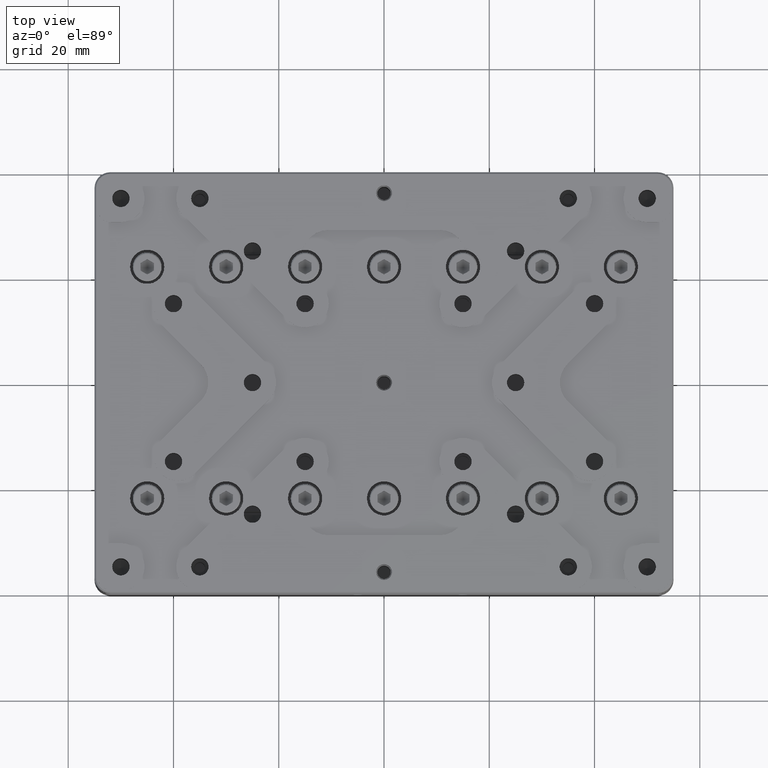
[diagram: clean part render]
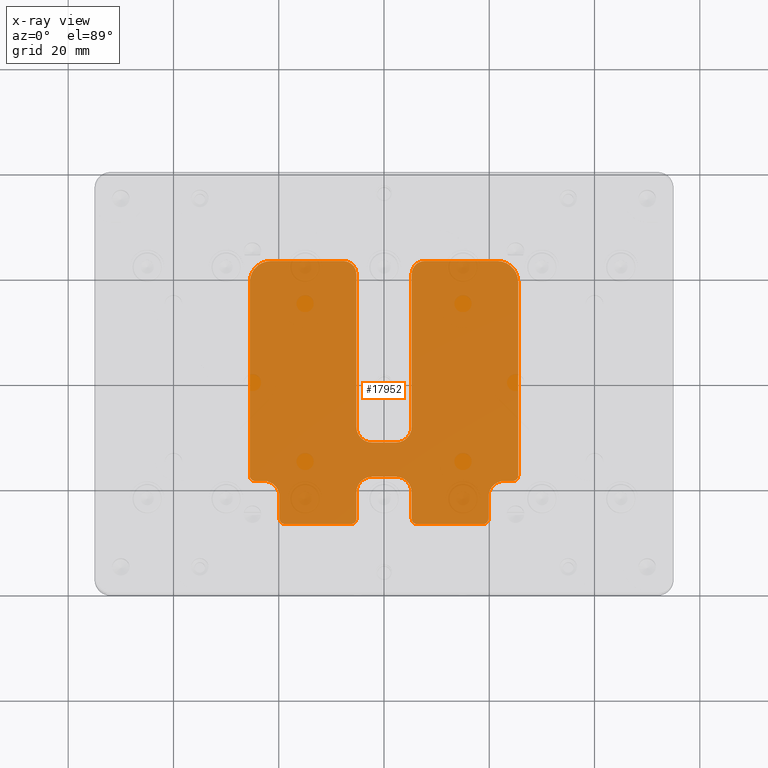
[diagram: x-ray — body ghosted, one internal face saturated and labeled with its STEP entity id]
A machine part, top view, then the same camera in x-ray: the body is ghosted and one INTERNAL B-rep face — a face not visible from any outside direction — is saturated and labeled: STEP entity #17952.
In plain terms, the highlighted planar face has unit normal (0, 0, -1).
Its self-contained STEP definition (entity closure, byte-faithful):
#125 = DIRECTION ( 'NONE',  ( -1.000000000000000000, 0.000000000000000000, 0.000000000000000000 ) ) ;
#130 = VECTOR ( 'NONE', #19628, 1000.000000000000000 ) ;
#164 = LINE ( 'NONE', #27561, #11228 ) ;
#165 = VERTEX_POINT ( 'NONE', #17765 ) ;
#207 = CARTESIAN_POINT ( 'NONE',  ( 18.85000000010499832, -26.49999999998555111, -8.799999999961789499 ) ) ;
#547 = DIRECTION ( 'NONE',  ( 0.000000000000000000, 0.000000000000000000, -1.000000000000000000 ) ) ;
#589 = AXIS2_PLACEMENT_3D ( 'NONE', #32885, #27697, #11940 ) ;
#609 = AXIS2_PLACEMENT_3D ( 'NONE', #22976, #12427, #3654 ) ;
#735 = DIRECTION ( 'NONE',  ( 1.000000000000000000, 0.000000000000000000, 0.000000000000000000 ) ) ;
#874 = EDGE_CURVE ( 'NONE', #14694, #27422, #6669, .T. ) ;
#953 = ORIENTED_EDGE ( 'NONE', *, *, #22316, .F. ) ;
#1195 = AXIS2_PLACEMENT_3D ( 'NONE', #10550, #8046, #32384 ) ;
#1376 = DIRECTION ( 'NONE',  ( 0.000000000000000000, 1.000000000000000000, 0.000000000000000000 ) ) ;
#1459 = CARTESIAN_POINT ( 'NONE',  ( -2.250000000000000000, -8.000000000000000000, -8.800000000007910828 ) ) ;
#1480 = VERTEX_POINT ( 'NONE', #11110 ) ;
#1581 = CARTESIAN_POINT ( 'NONE',  ( -21.49999998740000251, 23.49999999868059675, -8.799999999354209734 ) ) ;
#1583 = VERTEX_POINT ( 'NONE', #33825 ) ;
#1656 = ORIENTED_EDGE ( 'NONE', *, *, #28094, .F. ) ;
#1877 = CARTESIAN_POINT ( 'NONE',  ( -22.84999999999999787, -21.30000000000000071, -8.800000005010129911 ) ) ;
#1891 = VERTEX_POINT ( 'NONE', #14815 ) ;
#2003 = CARTESIAN_POINT ( 'NONE',  ( -18.84999999999999787, -25.50000000000000000, -8.799999999951069185 ) ) ;
#2096 = DIRECTION ( 'NONE',  ( 0.000000000000000000, -1.000000000000000000, 0.000000000000000000 ) ) ;
#2180 = ORIENTED_EDGE ( 'NONE', *, *, #23072, .F. ) ;
#2217 = DIRECTION ( 'NONE',  ( 1.000000000000000000, 0.000000000000000000, 0.000000000000000000 ) ) ;
#2285 = ORIENTED_EDGE ( 'NONE', *, *, #30679, .F. ) ;
#2330 = VERTEX_POINT ( 'NONE', #6538 ) ;
#2498 = CARTESIAN_POINT ( 'NONE',  ( -21.50000000000000000, 19.50000000000000000, -8.800000000007910828 ) ) ;
#2547 = EDGE_CURVE ( 'NONE', #22695, #1583, #23355, .T. ) ;
#2607 = DIRECTION ( 'NONE',  ( 0.000000000000000000, 0.000000000000000000, -1.000000000000000000 ) ) ;
#2640 = VERTEX_POINT ( 'NONE', #19034 ) ;
#2720 = DIRECTION ( 'NONE',  ( 0.000000000000000000, 1.000000000000000000, 0.000000000000000000 ) ) ;
#2803 = LINE ( 'NONE', #24648, #34516 ) ;
#2813 = CARTESIAN_POINT ( 'NONE',  ( -6.250000000000000000, -25.50000000000000000, -8.799999999951069185 ) ) ;
#2941 = DIRECTION ( 'NONE',  ( 1.000000000000000000, 0.000000000000000000, 0.000000000000000000 ) ) ;
#3181 = CARTESIAN_POINT ( 'NONE',  ( 21.50000000000000000, 23.49999999998429701, -8.800000000016961366 ) ) ;
#3326 = VERTEX_POINT ( 'NONE', #15523 ) ;
#3654 = DIRECTION ( 'NONE',  ( 1.000000000000000000, 0.000000000000000000, 0.000000000000000000 ) ) ;
#3911 = AXIS2_PLACEMENT_3D ( 'NONE', #32540, #14095, #25025 ) ;
#4018 = VERTEX_POINT ( 'NONE', #26011 ) ;
#4027 = VECTOR ( 'NONE', #15087, 1000.000000000000000 ) ;
#4051 = EDGE_CURVE ( 'NONE', #1891, #32509, #19925, .T. ) ;
#4198 = AXIS2_PLACEMENT_3D ( 'NONE', #35378, #13719, #5662 ) ;
#4209 = EDGE_CURVE ( 'NONE', #17179, #28398, #31906, .T. ) ;
#4291 = LINE ( 'NONE', #34534, #6667 ) ;
#4347 = DIRECTION ( 'NONE',  ( -1.000000000000000000, 0.000000000000000000, 0.000000000000000000 ) ) ;
#4710 = CARTESIAN_POINT ( 'NONE',  ( 19.85000000247055141, -25.50000000000000000, -8.800000002470531157 ) ) ;
#4866 = DIRECTION ( 'NONE',  ( 0.000000000000000000, 0.000000000000000000, -1.000000000000000000 ) ) ;
#5227 = CARTESIAN_POINT ( 'NONE',  ( 0.000000000000000000, -18.29999999997000160, -8.800000000000000711 ) ) ;
#5512 = CARTESIAN_POINT ( 'NONE',  ( -18.84999999999999787, -26.49999999996180122, -8.799999999961789499 ) ) ;
#5515 = ORIENTED_EDGE ( 'NONE', *, *, #32494, .F. ) ;
#5531 = AXIS2_PLACEMENT_3D ( 'NONE', #13785, #8762, #11099 ) ;
#5622 = VECTOR ( 'NONE', #2217, 1000.000000000000000 ) ;
#5662 = DIRECTION ( 'NONE',  ( -1.000000000000000000, 0.000000000000000000, 0.000000000000000000 ) ) ;
#5680 = ORIENTED_EDGE ( 'NONE', *, *, #874, .F. ) ;
#5814 = CARTESIAN_POINT ( 'NONE',  ( 5.250000000025000446, -25.50000000010499690, -8.799999999963029396 ) ) ;
#5843 = EDGE_CURVE ( 'NONE', #7016, #6335, #9803, .T. ) ;
#6024 = ORIENTED_EDGE ( 'NONE', *, *, #5843, .F. ) ;
#6071 = EDGE_CURVE ( 'NONE', #35272, #17179, #17923, .T. ) ;
#6164 = EDGE_CURVE ( 'NONE', #14967, #32928, #28774, .T. ) ;
#6183 = CIRCLE ( 'NONE', #19812, 2.999999995037069933 ) ;
#6243 = CARTESIAN_POINT ( 'NONE',  ( -25.49999999997249844, -17.30000000010499761, -8.799999999961789499 ) ) ;
#6335 = VERTEX_POINT ( 'NONE', #12269 ) ;
#6393 = LINE ( 'NONE', #17316, #28699 ) ;
#6417 = CARTESIAN_POINT ( 'NONE',  ( 22.84999999999999787, -18.30000000246069902, -8.800000002507051278 ) ) ;
#6538 = CARTESIAN_POINT ( 'NONE',  ( -19.85000000249129926, -21.30000000000000071, -8.800000002491309203 ) ) ;
#6667 = VECTOR ( 'NONE', #7329, 1000.000000000000000 ) ;
#6669 = CIRCLE ( 'NONE', #31239, 0.9999999999986339816 ) ;
#6848 = CARTESIAN_POINT ( 'NONE',  ( 19.85000000499000095, -23.40000000000000213, -8.800000004990000235 ) ) ;
#7016 = VERTEX_POINT ( 'NONE', #6243 ) ;
#7054 = LINE ( 'NONE', #31210, #22911 ) ;
#7143 = VERTEX_POINT ( 'NONE', #6417 ) ;
#7329 = DIRECTION ( 'NONE',  ( 0.000000000000000000, -1.000000000000000000, 0.000000000000000000 ) ) ;
#7723 = AXIS2_PLACEMENT_3D ( 'NONE', #2498, #22007, #16643 ) ;
#8046 = DIRECTION ( 'NONE',  ( 0.000000000000000000, 0.000000000000000000, -1.000000000000000000 ) ) ;
#8098 = EDGE_CURVE ( 'NONE', #165, #33449, #24812, .T. ) ;
#8331 = EDGE_CURVE ( 'NONE', #1480, #34989, #30977, .T. ) ;
#8480 = CARTESIAN_POINT ( 'NONE',  ( 25.49999999868060030, 19.49999998739999896, -8.799999999351030056 ) ) ;
#8762 = DIRECTION ( 'NONE',  ( 0.000000000000000000, 0.000000000000000000, -1.000000000000000000 ) ) ;
#9148 = CARTESIAN_POINT ( 'NONE',  ( 14.62500000000000000, 23.50000000000000000, -8.800000000000000711 ) ) ;
#9165 = DIRECTION ( 'NONE',  ( 0.000000000000000000, 0.000000000000000000, -1.000000000000000000 ) ) ;
#9209 = ORIENTED_EDGE ( 'NONE', *, *, #34458, .T. ) ;
#9413 = ORIENTED_EDGE ( 'NONE', *, *, #24083, .F. ) ;
#9538 = CARTESIAN_POINT ( 'NONE',  ( 0.000000000000000000, -18.30000000499000024, -8.800000000000000711 ) ) ;
#9721 = VECTOR ( 'NONE', #23652, 1000.000000000000000 ) ;
#9739 = VERTEX_POINT ( 'NONE', #25819 ) ;
#9759 = CARTESIAN_POINT ( 'NONE',  ( 5.249999997535859997, -20.50000000000000000, -8.800000002464150484 ) ) ;
#9803 = LINE ( 'NONE', #23404, #17355 ) ;
#9869 = EDGE_CURVE ( 'NONE', #14567, #17012, #14660, .T. ) ;
#10035 = FACE_OUTER_BOUND ( 'NONE', #15725, .T. ) ;
#10060 = CARTESIAN_POINT ( 'NONE',  ( 5.250000000025000446, -23.00000000000000000, -8.799999999975000264 ) ) ;
#10086 = AXIS2_PLACEMENT_3D ( 'NONE', #1459, #4866, #26358 ) ;
#10411 = EDGE_CURVE ( 'NONE', #26877, #21181, #4291, .T. ) ;
#10481 = ORIENTED_EDGE ( 'NONE', *, *, #6164, .F. ) ;
#10550 = CARTESIAN_POINT ( 'NONE',  ( -7.750000000000000000, 21.00000000000000000, -8.799999999951069185 ) ) ;
#10648 = ORIENTED_EDGE ( 'NONE', *, *, #14931, .F. ) ;
#11099 = DIRECTION ( 'NONE',  ( -1.000000000000000000, 0.000000000000000000, 0.000000000000000000 ) ) ;
#11110 = CARTESIAN_POINT ( 'NONE',  ( 7.750000000000000000, 23.49999999843884879, -8.799999998499579590 ) ) ;
#11228 = VECTOR ( 'NONE', #16820, 1000.000000000000000 ) ;
#11400 = VERTEX_POINT ( 'NONE', #35105 ) ;
#11495 = LINE ( 'NONE', #33495, #15151 ) ;
#11642 = CARTESIAN_POINT ( 'NONE',  ( -6.249999999894000347, -26.49999999998555111, -8.799999999961789499 ) ) ;
#11940 = DIRECTION ( 'NONE',  ( -1.000000000000000000, 0.000000000000000000, 0.000000000000000000 ) ) ;
#12026 = DIRECTION ( 'NONE',  ( 0.000000000000000000, 0.000000000000000000, -1.000000000000000000 ) ) ;
#12269 = CARTESIAN_POINT ( 'NONE',  ( -25.49999999999020162, 19.50000000000000000, -8.799999999990209432 ) ) ;
#12298 = ORIENTED_EDGE ( 'NONE', *, *, #14340, .F. ) ;
#12326 = ORIENTED_EDGE ( 'NONE', *, *, #19942, .T. ) ;
#12427 = DIRECTION ( 'NONE',  ( 0.000000000000000000, 0.000000000000000000, -1.000000000000000000 ) ) ;
#12548 = AXIS2_PLACEMENT_3D ( 'NONE', #2003, #35109, #4347 ) ;
#13015 = CIRCLE ( 'NONE', #19298, 1.000000000010641710 ) ;
#13197 = DIRECTION ( 'NONE',  ( -1.000000000000000000, 0.000000000000000000, 0.000000000000000000 ) ) ;
#13342 = AXIS2_PLACEMENT_3D ( 'NONE', #27144, #2607, #13538 ) ;
#13367 = LINE ( 'NONE', #35019, #24138 ) ;
#13538 = DIRECTION ( 'NONE',  ( -1.000000000000000000, 0.000000000000000000, 0.000000000000000000 ) ) ;
#13719 = DIRECTION ( 'NONE',  ( 0.000000000000000000, 0.000000000000000000, -1.000000000000000000 ) ) ;
#13751 = EDGE_CURVE ( 'NONE', #26510, #3326, #14233, .T. ) ;
#13785 = CARTESIAN_POINT ( 'NONE',  ( 7.750000000000000000, 21.00000000000000000, -8.799999996995209628 ) ) ;
#13973 = AXIS2_PLACEMENT_3D ( 'NONE', #1877, #23722, #34642 ) ;
#14095 = DIRECTION ( 'NONE',  ( 0.000000000000000000, 0.000000000000000000, -1.000000000000000000 ) ) ;
#14233 = CIRCLE ( 'NONE', #12548, 0.9999999999986339816 ) ;
#14337 = ORIENTED_EDGE ( 'NONE', *, *, #13751, .F. ) ;
#14340 = EDGE_CURVE ( 'NONE', #1583, #2640, #27502, .T. ) ;
#14567 = VERTEX_POINT ( 'NONE', #20550 ) ;
#14660 = CIRCLE ( 'NONE', #10086, 3.000000000024100277 ) ;
#14694 = VERTEX_POINT ( 'NONE', #32877 ) ;
#14815 = CARTESIAN_POINT ( 'NONE',  ( -22.85000003353500020, -18.30000000499000024, -8.800000002505070640 ) ) ;
#14931 = EDGE_CURVE ( 'NONE', #31090, #7143, #26542, .T. ) ;
#14967 = VERTEX_POINT ( 'NONE', #4710 ) ;
#15087 = DIRECTION ( 'NONE',  ( -1.000000000000000000, 0.000000000000000000, 0.000000000000000000 ) ) ;
#15151 = VECTOR ( 'NONE', #2720, 1000.000000000000000 ) ;
#15491 = EDGE_CURVE ( 'NONE', #6335, #22695, #34609, .T. ) ;
#15523 = CARTESIAN_POINT ( 'NONE',  ( -19.84999999997249631, -25.50000000010499690, -8.799999999961778840 ) ) ;
#15604 = ORIENTED_EDGE ( 'NONE', *, *, #22246, .T. ) ;
#15629 = DIRECTION ( 'NONE',  ( -1.000000000000000000, 0.000000000000000000, 0.000000000000000000 ) ) ;
#15690 = VECTOR ( 'NONE', #735, 1000.000000000000000 ) ;
#15725 = EDGE_LOOP ( 'NONE', ( #12298, #20237, #23996, #6024, #32396, #32602, #30768, #27725, #14337, #25810, #5680, #2285, #32576, #2180, #12326, #29831, #35316, #1656, #10481, #29104, #9209, #10648, #20118, #16652, #9413, #27391, #23897, #17362, #15604, #5515, #16166, #953 ) ) ;
#16166 = ORIENTED_EDGE ( 'NONE', *, *, #9869, .T. ) ;
#16252 = AXIS2_PLACEMENT_3D ( 'NONE', #34947, #26706, #18312 ) ;
#16344 = VERTEX_POINT ( 'NONE', #26937 ) ;
#16643 = DIRECTION ( 'NONE',  ( -1.000000000000000000, 0.000000000000000000, 0.000000000000000000 ) ) ;
#16652 = ORIENTED_EDGE ( 'NONE', *, *, #10411, .F. ) ;
#16751 = EDGE_CURVE ( 'NONE', #3326, #2330, #164, .T. ) ;
#16820 = DIRECTION ( 'NONE',  ( 0.000000000000000000, 1.000000000000000000, 0.000000000000000000 ) ) ;
#17012 = VERTEX_POINT ( 'NONE', #23195 ) ;
#17179 = VERTEX_POINT ( 'NONE', #5814 ) ;
#17316 = CARTESIAN_POINT ( 'NONE',  ( 0.000000000000000000, -17.50000000499000308, -8.800000004990000235 ) ) ;
#17355 = VECTOR ( 'NONE', #1376, 1000.000000000000000 ) ;
#17362 = ORIENTED_EDGE ( 'NONE', *, *, #31662, .F. ) ;
#17537 = CARTESIAN_POINT ( 'NONE',  ( -2.250000000000000000, -17.50000000497165331, -8.800000004971639811 ) ) ;
#17765 = CARTESIAN_POINT ( 'NONE',  ( -5.249999995010000475, -20.50000003353499878, -8.800000004971650469 ) ) ;
#17923 = CIRCLE ( 'NONE', #4198, 0.9999999999986339816 ) ;
#17952 = ADVANCED_FACE ( 'NONE', ( #10035 ), #20955, .F. ) ;
#18312 = DIRECTION ( 'NONE',  ( 1.000000000000000000, -1.156482319241290528E-15, 0.000000000000000000 ) ) ;
#18655 = VERTEX_POINT ( 'NONE', #20484 ) ;
#18658 = CIRCLE ( 'NONE', #5531, 2.499999996970019733 ) ;
#19034 = CARTESIAN_POINT ( 'NONE',  ( -5.250000002995990123, 20.99999998896999642, -8.799999998473140295 ) ) ;
#19244 = EDGE_CURVE ( 'NONE', #21181, #31090, #13015, .T. ) ;
#19270 = LINE ( 'NONE', #24644, #130 ) ;
#19298 = AXIS2_PLACEMENT_3D ( 'NONE', #28318, #12026, #22934 ) ;
#19354 = CIRCLE ( 'NONE', #3911, 2.999999995010509846 ) ;
#19628 = DIRECTION ( 'NONE',  ( -1.000000000000000000, 0.000000000000000000, 0.000000000000000000 ) ) ;
#19766 = VECTOR ( 'NONE', #2941, 1000.000000000000000 ) ;
#19812 = AXIS2_PLACEMENT_3D ( 'NONE', #33301, #547, #25420 ) ;
#19925 = LINE ( 'NONE', #9538, #4027 ) ;
#19942 = EDGE_CURVE ( 'NONE', #11400, #28398, #19354, .T. ) ;
#20118 = ORIENTED_EDGE ( 'NONE', *, *, #19244, .F. ) ;
#20237 = ORIENTED_EDGE ( 'NONE', *, *, #2547, .F. ) ;
#20484 = CARTESIAN_POINT ( 'NONE',  ( 2.250000000000000000, -10.99999999704020048, -8.800000002959819767 ) ) ;
#20550 = CARTESIAN_POINT ( 'NONE',  ( -2.250000000000000000, -11.00000000002135891, -8.800000000007910828 ) ) ;
#20618 = CARTESIAN_POINT ( 'NONE',  ( 21.50000000000000000, 19.50000000000000000, -8.800000000001551470 ) ) ;
#20955 = PLANE ( 'NONE',  #27886 ) ;
#21181 = VERTEX_POINT ( 'NONE', #21833 ) ;
#21740 = CARTESIAN_POINT ( 'NONE',  ( 24.50000000010500045, -18.29999999997374971, -8.799999999971790388 ) ) ;
#21746 = EDGE_CURVE ( 'NONE', #32509, #7016, #24607, .T. ) ;
#21833 = CARTESIAN_POINT ( 'NONE',  ( 25.49999999932555284, -17.30000000000000071, -8.799999999325539335 ) ) ;
#22007 = DIRECTION ( 'NONE',  ( 0.000000000000000000, 0.000000000000000000, -1.000000000000000000 ) ) ;
#22159 = DIRECTION ( 'NONE',  ( 0.000000000000000000, 0.000000000000000000, -1.000000000000000000 ) ) ;
#22246 = EDGE_CURVE ( 'NONE', #9739, #18655, #30347, .T. ) ;
#22316 = EDGE_CURVE ( 'NONE', #2640, #17012, #7054, .T. ) ;
#22550 = CIRCLE ( 'NONE', #13973, 2.999999995037069933 ) ;
#22695 = VERTEX_POINT ( 'NONE', #1581 ) ;
#22806 = CARTESIAN_POINT ( 'NONE',  ( -24.50000000000000000, -18.30000000251159875, -8.799999999951069185 ) ) ;
#22911 = VECTOR ( 'NONE', #34264, 1000.000000000000000 ) ;
#22934 = DIRECTION ( 'NONE',  ( -1.000000000000000000, 0.000000000000000000, 0.000000000000000000 ) ) ;
#22938 = DIRECTION ( 'NONE',  ( -1.000000000000000000, 0.000000000000000000, 0.000000000000000000 ) ) ;
#22976 = CARTESIAN_POINT ( 'NONE',  ( 2.250000000000000000, -8.000000000000000000, -8.800000005919629942 ) ) ;
#23072 = EDGE_CURVE ( 'NONE', #11400, #33449, #6393, .T. ) ;
#23102 = VECTOR ( 'NONE', #15629, 1000.000000000000000 ) ;
#23195 = CARTESIAN_POINT ( 'NONE',  ( -5.250000001477050482, -8.000000000000000000, -8.799999998522959999 ) ) ;
#23355 = LINE ( 'NONE', #26740, #5622 ) ;
#23404 = CARTESIAN_POINT ( 'NONE',  ( -25.49999999997249844, 1.100000000000000089, -8.799999999972499154 ) ) ;
#23652 = DIRECTION ( 'NONE',  ( 0.000000000000000000, -1.000000000000000000, 0.000000000000000000 ) ) ;
#23722 = DIRECTION ( 'NONE',  ( 0.000000000000000000, 0.000000000000000000, -1.000000000000000000 ) ) ;
#23897 = ORIENTED_EDGE ( 'NONE', *, *, #33307, .F. ) ;
#23995 = CARTESIAN_POINT ( 'NONE',  ( 0.000000000000000000, 0.000000000000000000, -8.800000000000000711 ) ) ;
#23996 = ORIENTED_EDGE ( 'NONE', *, *, #15491, .F. ) ;
#24083 = EDGE_CURVE ( 'NONE', #34989, #26877, #28164, .T. ) ;
#24093 = VECTOR ( 'NONE', #29563, 1000.000000000000000 ) ;
#24138 = VECTOR ( 'NONE', #13197, 1000.000000000000000 ) ;
#24607 = CIRCLE ( 'NONE', #589, 1.000000000010641710 ) ;
#24644 = CARTESIAN_POINT ( 'NONE',  ( -12.55000000000000071, -26.49999999997250200, -8.799999999972499154 ) ) ;
#24648 = CARTESIAN_POINT ( 'NONE',  ( -5.249999995010000475, -23.00000000000000000, -8.800000004990000235 ) ) ;
#24796 = LINE ( 'NONE', #33199, #19766 ) ;
#24812 = CIRCLE ( 'NONE', #16252, 2.999999995010509846 ) ;
#25025 = DIRECTION ( 'NONE',  ( 1.000000000000000000, -1.156482319241290528E-15, 0.000000000000000000 ) ) ;
#25420 = DIRECTION ( 'NONE',  ( 1.000000000000000000, 0.000000000000000000, 0.000000000000000000 ) ) ;
#25810 = ORIENTED_EDGE ( 'NONE', *, *, #29503, .F. ) ;
#25819 = CARTESIAN_POINT ( 'NONE',  ( 5.249999994126000047, -7.999999997169498833, -8.800000005896819744 ) ) ;
#25915 = EDGE_CURVE ( 'NONE', #4018, #14967, #31361, .T. ) ;
#26011 = CARTESIAN_POINT ( 'NONE',  ( 19.85000000497645090, -21.30000003353499594, -8.800000005010129911 ) ) ;
#26358 = DIRECTION ( 'NONE',  ( 1.000000000000000000, 0.000000000000000000, 0.000000000000000000 ) ) ;
#26510 = VERTEX_POINT ( 'NONE', #5512 ) ;
#26542 = LINE ( 'NONE', #5227, #23102 ) ;
#26706 = DIRECTION ( 'NONE',  ( 0.000000000000000000, 0.000000000000000000, -1.000000000000000000 ) ) ;
#26740 = CARTESIAN_POINT ( 'NONE',  ( -14.62500000000000000, 23.49999999869999812, -8.799999998700000603 ) ) ;
#26877 = VERTEX_POINT ( 'NONE', #8480 ) ;
#26937 = CARTESIAN_POINT ( 'NONE',  ( 5.249999998565390236, 20.99999998896999642, -8.799999996995209628 ) ) ;
#27144 = CARTESIAN_POINT ( 'NONE',  ( 18.84999999999999787, -25.50000000000000000, -8.799999999951069185 ) ) ;
#27391 = ORIENTED_EDGE ( 'NONE', *, *, #8331, .F. ) ;
#27422 = VERTEX_POINT ( 'NONE', #11642 ) ;
#27502 = CIRCLE ( 'NONE', #1195, 2.499999999925873961 ) ;
#27561 = CARTESIAN_POINT ( 'NONE',  ( -19.84999999997249631, -23.40000000000000213, -8.799999999972499154 ) ) ;
#27697 = DIRECTION ( 'NONE',  ( 0.000000000000000000, 0.000000000000000000, -1.000000000000000000 ) ) ;
#27725 = ORIENTED_EDGE ( 'NONE', *, *, #16751, .F. ) ;
#27886 = AXIS2_PLACEMENT_3D ( 'NONE', #23995, #31877, #29716 ) ;
#28094 = EDGE_CURVE ( 'NONE', #32928, #35272, #13367, .T. ) ;
#28164 = CIRCLE ( 'NONE', #31013, 3.999999999962255970 ) ;
#28230 = DIRECTION ( 'NONE',  ( -1.000000000000000000, 0.000000000000000000, 0.000000000000000000 ) ) ;
#28318 = CARTESIAN_POINT ( 'NONE',  ( 24.50000000000000000, -17.30000000000000071, -8.799999999951069185 ) ) ;
#28398 = VERTEX_POINT ( 'NONE', #9759 ) ;
#28699 = VECTOR ( 'NONE', #28230, 1000.000000000000000 ) ;
#28774 = CIRCLE ( 'NONE', #13342, 0.9999999999986339816 ) ;
#29104 = ORIENTED_EDGE ( 'NONE', *, *, #25915, .F. ) ;
#29503 = EDGE_CURVE ( 'NONE', #27422, #26510, #19270, .T. ) ;
#29563 = DIRECTION ( 'NONE',  ( 0.000000000000000000, 1.000000000000000000, 0.000000000000000000 ) ) ;
#29716 = DIRECTION ( 'NONE',  ( 0.000000000000000000, -1.000000000000000000, 0.000000000000000000 ) ) ;
#29831 = ORIENTED_EDGE ( 'NONE', *, *, #4209, .F. ) ;
#30347 = CIRCLE ( 'NONE', #609, 2.999999994169229911 ) ;
#30679 = EDGE_CURVE ( 'NONE', #165, #14694, #2803, .T. ) ;
#30768 = ORIENTED_EDGE ( 'NONE', *, *, #30970, .T. ) ;
#30970 = EDGE_CURVE ( 'NONE', #1891, #2330, #22550, .T. ) ;
#30977 = LINE ( 'NONE', #9148, #15690 ) ;
#31013 = AXIS2_PLACEMENT_3D ( 'NONE', #20618, #9165, #22938 ) ;
#31090 = VERTEX_POINT ( 'NONE', #21740 ) ;
#31210 = CARTESIAN_POINT ( 'NONE',  ( -5.250000002961999535, 6.500000000000000000, -8.799999997038000288 ) ) ;
#31239 = AXIS2_PLACEMENT_3D ( 'NONE', #2813, #22159, #125 ) ;
#31361 = LINE ( 'NONE', #6848, #9721 ) ;
#31662 = EDGE_CURVE ( 'NONE', #9739, #16344, #11495, .T. ) ;
#31877 = DIRECTION ( 'NONE',  ( 0.000000000000000000, 0.000000000000000000, -1.000000000000000000 ) ) ;
#31906 = LINE ( 'NONE', #10060, #24093 ) ;
#32384 = DIRECTION ( 'NONE',  ( -1.000000000000000000, 0.000000000000000000, 0.000000000000000000 ) ) ;
#32396 = ORIENTED_EDGE ( 'NONE', *, *, #21746, .F. ) ;
#32494 = EDGE_CURVE ( 'NONE', #14567, #18655, #24796, .T. ) ;
#32509 = VERTEX_POINT ( 'NONE', #22806 ) ;
#32540 = CARTESIAN_POINT ( 'NONE',  ( 2.250000000000000000, -20.50000000000000000, -8.800000004953290045 ) ) ;
#32576 = ORIENTED_EDGE ( 'NONE', *, *, #8098, .T. ) ;
#32602 = ORIENTED_EDGE ( 'NONE', *, *, #4051, .F. ) ;
#32877 = CARTESIAN_POINT ( 'NONE',  ( -5.249999997529470441, -25.50000000000000000, -8.800000002470540039 ) ) ;
#32885 = CARTESIAN_POINT ( 'NONE',  ( -24.50000000000000000, -17.30000000000000071, -8.799999999951069185 ) ) ;
#32928 = VERTEX_POINT ( 'NONE', #207 ) ;
#33199 = CARTESIAN_POINT ( 'NONE',  ( 0.000000000000000000, -11.00000000000000000, -8.800000000000000711 ) ) ;
#33301 = CARTESIAN_POINT ( 'NONE',  ( 22.84999999999999787, -21.30000000000000071, -8.800000005010129911 ) ) ;
#33307 = EDGE_CURVE ( 'NONE', #16344, #1480, #18658, .T. ) ;
#33449 = VERTEX_POINT ( 'NONE', #17537 ) ;
#33495 = CARTESIAN_POINT ( 'NONE',  ( 5.249999994126000047, 6.500000000000000000, -8.800000005873998887 ) ) ;
#33825 = CARTESIAN_POINT ( 'NONE',  ( -7.750000000000000000, 23.49999999932554928, -8.799999999325539335 ) ) ;
#34264 = DIRECTION ( 'NONE',  ( 0.000000000000000000, -1.000000000000000000, 0.000000000000000000 ) ) ;
#34458 = EDGE_CURVE ( 'NONE', #4018, #7143, #6183, .T. ) ;
#34516 = VECTOR ( 'NONE', #2096, 1000.000000000000000 ) ;
#34534 = CARTESIAN_POINT ( 'NONE',  ( 25.49999999870000167, 1.100000000000000089, -8.799999998700000603 ) ) ;
#34609 = CIRCLE ( 'NONE', #7723, 3.999999999968625986 ) ;
#34642 = DIRECTION ( 'NONE',  ( 1.000000000000000000, 0.000000000000000000, 0.000000000000000000 ) ) ;
#34947 = CARTESIAN_POINT ( 'NONE',  ( -2.250000000000000000, -20.50000000000000000, -8.800000004953290045 ) ) ;
#34989 = VERTEX_POINT ( 'NONE', #3181 ) ;
#35019 = CARTESIAN_POINT ( 'NONE',  ( 12.55000000000000071, -26.49999999997250200, -8.799999999972499154 ) ) ;
#35105 = CARTESIAN_POINT ( 'NONE',  ( 2.249999966464499845, -17.50000000499000308, -8.800000004971639811 ) ) ;
#35109 = DIRECTION ( 'NONE',  ( 0.000000000000000000, 0.000000000000000000, -1.000000000000000000 ) ) ;
#35272 = VERTEX_POINT ( 'NONE', #35374 ) ;
#35316 = ORIENTED_EDGE ( 'NONE', *, *, #6071, .F. ) ;
#35374 = CARTESIAN_POINT ( 'NONE',  ( 6.250000000000000000, -26.49999999996180122, -8.799999999961789499 ) ) ;
#35378 = CARTESIAN_POINT ( 'NONE',  ( 6.250000000000000000, -25.50000000000000000, -8.799999999951069185 ) ) ;